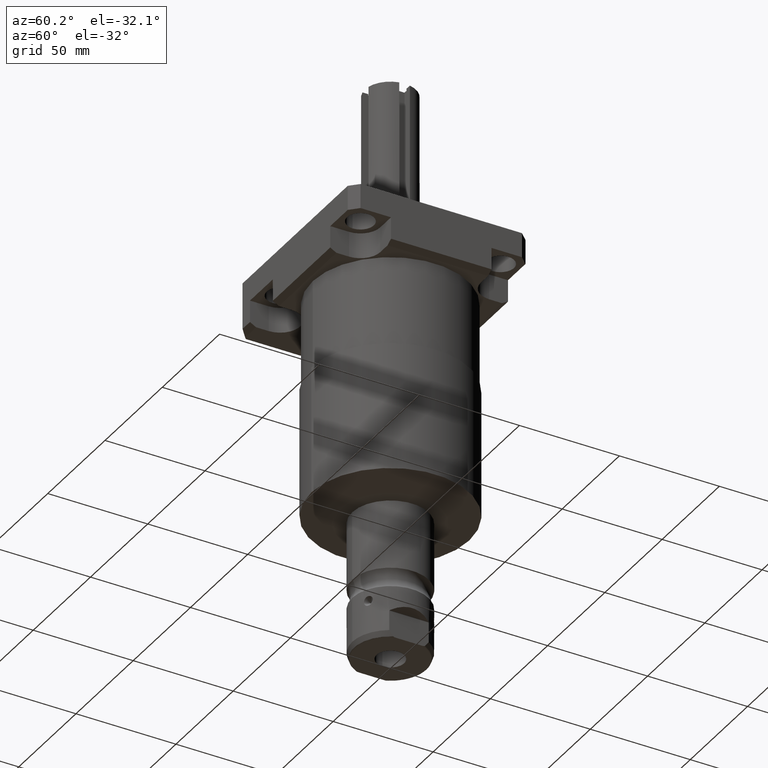
[diagram: clean part render]
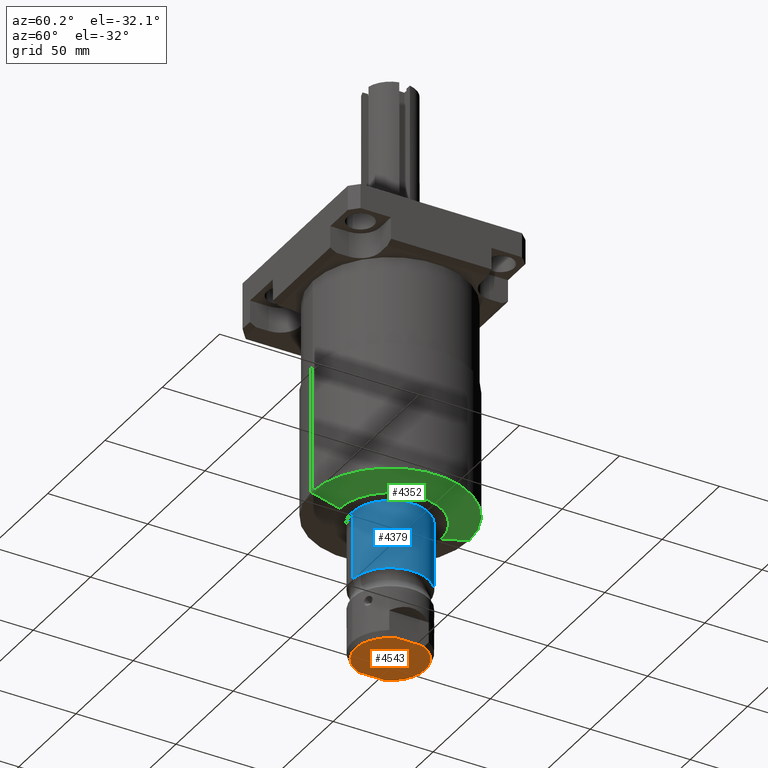
[diagram: same view with three faces highlighted in distinct colors, each labeled with its STEP entity id]
A machine part, auxiliary view with three faces highlighted in distinct colors.
Their STEP definitions:

[orange] entity #4543 — the highlighted planar face has unit normal (0, 0, 1).
#1228=CARTESIAN_POINT('',(0.E0,0.E0,-1.81585E2));
#1229=DIRECTION('',(0.E0,0.E0,-1.E0));
#1230=DIRECTION('',(9.281328705566E-1,-3.722490760127E-1,0.E0));
#1231=AXIS2_PLACEMENT_3D('',#1228,#1229,#1230);
#1243=CARTESIAN_POINT('',(0.E0,0.E0,-1.81585E2));
#1244=DIRECTION('',(0.E0,0.E0,-1.E0));
#1245=DIRECTION('',(-9.281328705566E-1,3.722490760127E-1,0.E0));
#1246=AXIS2_PLACEMENT_3D('',#1243,#1244,#1245);
#1248=CARTESIAN_POINT('',(0.E0,0.E0,-1.81585E2));
#1249=DIRECTION('',(0.E0,0.E0,-1.E0));
#1250=DIRECTION('',(1.E0,0.E0,0.E0));
#1251=AXIS2_PLACEMENT_3D('',#1248,#1249,#1250);
#1253=CARTESIAN_POINT('',(0.E0,0.E0,-1.81585E2));
#1254=DIRECTION('',(0.E0,0.E0,-1.E0));
#1255=DIRECTION('',(-1.E0,0.E0,0.E0));
#1256=AXIS2_PLACEMENT_3D('',#1253,#1254,#1255);
#1258=DIRECTION('',(0.E0,1.E0,0.E0));
#1259=VECTOR('',#1258,1.306014154518E1);
#1260=CARTESIAN_POINT('',(1.62815E1,-6.530070772589E0,-1.81585E2));
#1261=LINE('',#1260,#1259);
#1262=DIRECTION('',(0.E0,1.E0,0.E0));
#1263=VECTOR('',#1262,1.306014154518E1);
#1264=CARTESIAN_POINT('',(-1.62815E1,-6.530070772589E0,-1.81585E2));
#1265=LINE('',#1264,#1263);
#1318=CARTESIAN_POINT('',(1.62815E1,6.530070772589E0,-1.81585E2));
#1338=CARTESIAN_POINT('',(1.62815E1,-6.530070772589E0,-1.81585E2));
#1370=CARTESIAN_POINT('',(-1.62815E1,-6.530070772589E0,-1.81585E2));
#1390=CARTESIAN_POINT('',(-1.62815E1,6.530070772589E0,-1.81585E2));
#2973=CARTESIAN_POINT('',(6.9342E0,0.E0,-1.81585E2));
#2974=CARTESIAN_POINT('',(-6.9342E0,0.E0,-1.81585E2));
#2975=VERTEX_POINT('',#2973);
#2976=VERTEX_POINT('',#2974);
#2999=VERTEX_POINT('',#1370);
#3000=VERTEX_POINT('',#1390);
#3003=VERTEX_POINT('',#1318);
#3004=VERTEX_POINT('',#1338);
#4524=CARTESIAN_POINT('',(0.E0,0.E0,-1.81585E2));
#4525=DIRECTION('',(0.E0,0.E0,1.E0));
#4526=DIRECTION('',(0.E0,1.E0,0.E0));
#4527=AXIS2_PLACEMENT_3D('',#4524,#4525,#4526);
#4528=PLANE('',#4527);
#4529=ORIENTED_EDGE('',*,*,#4499,.F.);
#4531=ORIENTED_EDGE('',*,*,#4530,.T.);
#4532=ORIENTED_EDGE('',*,*,#4517,.F.);
#4534=ORIENTED_EDGE('',*,*,#4533,.F.);
#4535=EDGE_LOOP('',(#4529,#4531,#4532,#4534));
#4536=FACE_OUTER_BOUND('',#4535,.F.);
#4538=ORIENTED_EDGE('',*,*,#4537,.T.);
#4540=ORIENTED_EDGE('',*,*,#4539,.T.);
#4541=EDGE_LOOP('',(#4538,#4540));
#4542=FACE_BOUND('',#4541,.F.);
#1232=CIRCLE('',#1231,1.754220814336E1);
#1247=CIRCLE('',#1246,1.754220814336E1);
#1252=CIRCLE('',#1251,6.9342E0);
#1257=CIRCLE('',#1256,6.9342E0);
#4499=EDGE_CURVE('',#3004,#2999,#1232,.T.);
#4517=EDGE_CURVE('',#3000,#3003,#1247,.T.);
#4530=EDGE_CURVE('',#3004,#3003,#1261,.T.);
#4533=EDGE_CURVE('',#2999,#3000,#1265,.T.);
#4537=EDGE_CURVE('',#2975,#2976,#1252,.T.);
#4539=EDGE_CURVE('',#2976,#2975,#1257,.T.);
#4543=ADVANCED_FACE('',(#4536,#4542),#4528,.F.);

[blue] entity #4379 — the highlighted cylindrical surface (partial cylindrical patch) has radius 19.05 mm, axis along (0, 0, 1).
#1078=CARTESIAN_POINT('',(0.E0,0.E0,-1.12268E2));
#1079=DIRECTION('',(0.E0,0.E0,1.E0));
#1080=DIRECTION('',(0.E0,-1.E0,0.E0));
#1081=AXIS2_PLACEMENT_3D('',#1078,#1079,#1080);
#1105=DIRECTION('',(0.E0,0.E0,-1.E0));
#1106=VECTOR('',#1105,3.443470515582E1);
#1107=CARTESIAN_POINT('',(0.E0,-1.905E1,-1.12268E2));
#1108=LINE('',#1107,#1106);
#1109=DIRECTION('',(0.E0,0.E0,-1.E0));
#1110=VECTOR('',#1109,3.443470515582E1);
#1111=CARTESIAN_POINT('',(0.E0,1.905E1,-1.12268E2));
#1112=LINE('',#1111,#1110);
#1128=CARTESIAN_POINT('',(0.E0,0.E0,-1.467027051558E2));
#1129=DIRECTION('',(0.E0,0.E0,1.E0));
#1130=DIRECTION('',(0.E0,-1.E0,0.E0));
#1131=AXIS2_PLACEMENT_3D('',#1128,#1129,#1130);
#2955=CARTESIAN_POINT('',(0.E0,-1.905E1,-1.467027051558E2));
#2957=VERTEX_POINT('',#2955);
#2959=CARTESIAN_POINT('',(0.E0,1.905E1,-1.467027051558E2));
#2961=VERTEX_POINT('',#2959);
#2963=CARTESIAN_POINT('',(0.E0,-1.905E1,-1.12268E2));
#2964=CARTESIAN_POINT('',(0.E0,1.905E1,-1.12268E2));
#2965=VERTEX_POINT('',#2963);
#2966=VERTEX_POINT('',#2964);
#4365=CARTESIAN_POINT('',(0.E0,0.E0,-1.919152E2));
#4366=DIRECTION('',(0.E0,0.E0,1.E0));
#4367=DIRECTION('',(0.E0,1.E0,0.E0));
#4368=AXIS2_PLACEMENT_3D('',#4365,#4366,#4367);
#4369=CYLINDRICAL_SURFACE('',#4368,1.905E1);
#4370=ORIENTED_EDGE('',*,*,#4333,.T.);
#4372=ORIENTED_EDGE('',*,*,#4371,.T.);
#4374=ORIENTED_EDGE('',*,*,#4373,.F.);
#4376=ORIENTED_EDGE('',*,*,#4375,.F.);
#4377=EDGE_LOOP('',(#4370,#4372,#4374,#4376));
#4378=FACE_OUTER_BOUND('',#4377,.F.);
#1082=CIRCLE('',#1081,1.905E1);
#1132=CIRCLE('',#1131,1.905E1);
#4333=EDGE_CURVE('',#2965,#2966,#1082,.T.);
#4371=EDGE_CURVE('',#2966,#2961,#1112,.T.);
#4373=EDGE_CURVE('',#2957,#2961,#1132,.T.);
#4375=EDGE_CURVE('',#2965,#2957,#1108,.T.);
#4379=ADVANCED_FACE('',(#4378),#4369,.T.);

[green] entity #4352 — the highlighted conical surface has half-angle 75 deg.
#1073=CARTESIAN_POINT('',(0.E0,0.E0,-1.12268E2));
#1074=DIRECTION('',(0.E0,0.E0,-1.E0));
#1075=DIRECTION('',(0.E0,1.E0,0.E0));
#1076=AXIS2_PLACEMENT_3D('',#1073,#1074,#1075);
#1088=DIRECTION('',(0.E0,-9.659258262891E-1,2.588190451025E-1));
#1089=VECTOR('',#1088,1.462068785784E1);
#1090=CARTESIAN_POINT('',(0.E0,-2.54E1,-1.12268E2));
#1091=LINE('',#1090,#1089);
#1092=CARTESIAN_POINT('',(0.E0,0.E0,-1.084838875299E2));
#1093=DIRECTION('',(0.E0,0.E0,-1.E0));
#1094=DIRECTION('',(0.E0,1.E0,0.E0));
#1095=AXIS2_PLACEMENT_3D('',#1092,#1093,#1094);
#1097=DIRECTION('',(0.E0,9.659258262891E-1,2.588190451025E-1));
#1098=VECTOR('',#1097,1.462068785784E1);
#1099=CARTESIAN_POINT('',(0.E0,2.54E1,-1.12268E2));
#1100=LINE('',#1099,#1098);
#2947=CARTESIAN_POINT('',(0.E0,-2.54E1,-1.12268E2));
#2948=CARTESIAN_POINT('',(0.E0,2.54E1,-1.12268E2));
#2949=VERTEX_POINT('',#2947);
#2950=VERTEX_POINT('',#2948);
#2951=CARTESIAN_POINT('',(0.E0,-3.95225E1,-1.084838875299E2));
#2952=CARTESIAN_POINT('',(0.E0,3.95225E1,-1.084838875299E2));
#2953=VERTEX_POINT('',#2951);
#2954=VERTEX_POINT('',#2952);
#4340=CARTESIAN_POINT('',(0.E0,0.E0,-1.103759437649E2));
#4341=DIRECTION('',(0.E0,0.E0,1.E0));
#4342=DIRECTION('',(0.E0,1.E0,0.E0));
#4343=AXIS2_PLACEMENT_3D('',#4340,#4341,#4342);
#4344=CONICAL_SURFACE('',#4343,3.246125E1,7.5E1);
#4345=ORIENTED_EDGE('',*,*,#4329,.T.);
#4346=ORIENTED_EDGE('',*,*,#4318,.T.);
#4348=ORIENTED_EDGE('',*,*,#4347,.F.);
#4349=ORIENTED_EDGE('',*,*,#4315,.F.);
#4350=EDGE_LOOP('',(#4345,#4346,#4348,#4349));
#4351=FACE_OUTER_BOUND('',#4350,.F.);
#1077=CIRCLE('',#1076,2.54E1);
#1096=CIRCLE('',#1095,3.95225E1);
#4315=EDGE_CURVE('',#2950,#2954,#1100,.T.);
#4318=EDGE_CURVE('',#2949,#2953,#1091,.T.);
#4329=EDGE_CURVE('',#2950,#2949,#1077,.T.);
#4347=EDGE_CURVE('',#2954,#2953,#1096,.T.);
#4352=ADVANCED_FACE('',(#4351),#4344,.T.);